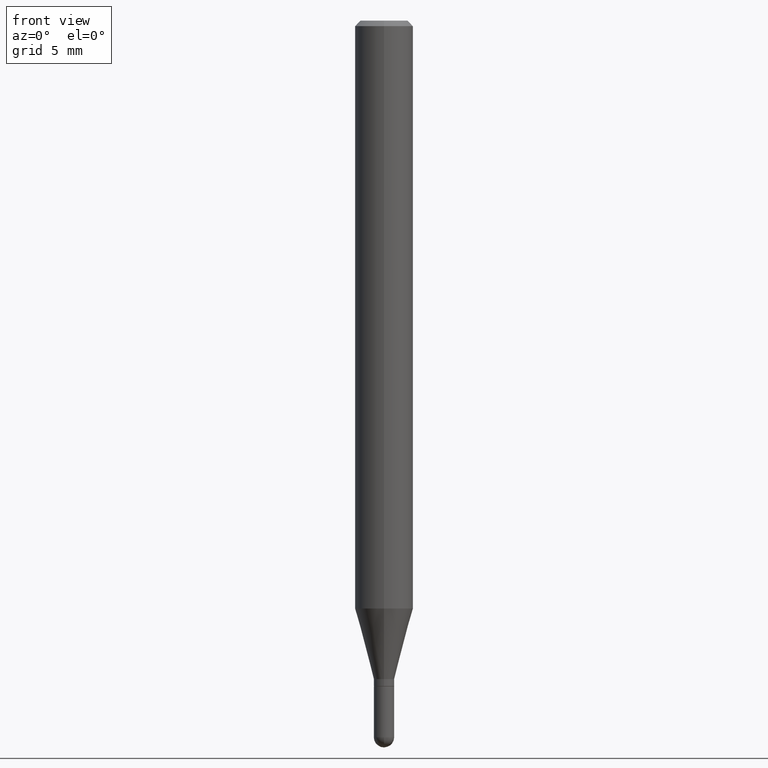
[diagram: clean part render]
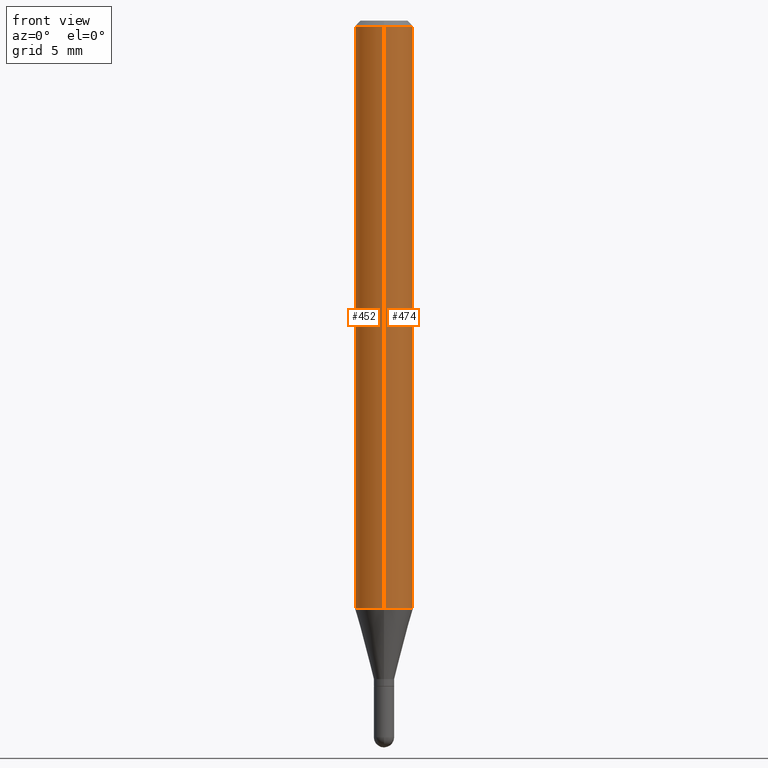
[diagram: same view with one multi-face feature highlighted, each face labeled with its STEP entity id]
A machine part, front view. The highlighted faces form ONE feature: a constant-radius fillet chain: 2 tangent blend faces with common blend radius 2.0002 mm. The faces share edges in the B-rep.
Their STEP definitions:
[1] entity #474 (Cylinder):
#4 = EDGE_CURVE ( 'NONE', #286, #284, #133, .T. ) ;
#21 = EDGE_CURVE ( 'NONE', #183, #42, #372, .T. ) ;
#22 = CARTESIAN_POINT ( 'NONE',  ( -5.499083108677546915E-16, -0.07875000000000557943, -1.592418998652472384 ) ) ;
#29 = CARTESIAN_POINT ( 'NONE',  ( 0.000000000000000000, 0.000000000000000000, 0.000000000000000000 ) ) ;
#39 = ORIENTED_EDGE ( 'NONE', *, *, #350, .F. ) ;
#42 = VERTEX_POINT ( 'NONE', #101 ) ;
#43 = DIRECTION ( 'NONE',  ( -6.982962677686264344E-15, -1.000000000000000000, 3.469013325287953293E-15 ) ) ;
#59 = DIRECTION ( 'NONE',  ( -2.445517019961652946E-29, 3.491412293971016589E-15, 1.000000000000000000 ) ) ;
#66 = DIRECTION ( 'NONE',  ( -2.445517019961652946E-29, 3.491412293971016589E-15, 1.000000000000000000 ) ) ;
#67 = FACE_OUTER_BOUND ( 'NONE', #124, .T. ) ;
#99 = CIRCLE ( 'NONE', #169, 0.07875000000000000056 ) ;
#101 = CARTESIAN_POINT ( 'NONE',  ( 5.595524044111180475E-16, 0.07874999999999994504, -0.01500000000000029261 ) ) ;
#103 = AXIS2_PLACEMENT_3D ( 'NONE', #214, #59, #282 ) ;
#116 = CARTESIAN_POINT ( 'NONE',  ( 5.595524044111174559E-16, 0.07874999999999440781, -1.592418998652472828 ) ) ;
#124 = EDGE_LOOP ( 'NONE', ( #305, #239, #39, #511 ) ) ;
#133 = LINE ( 'NONE', #292, #315 ) ;
#164 = CARTESIAN_POINT ( 'NONE',  ( 3.894287764114914031E-29, -5.559791269048257593E-15, -1.592418998652472606 ) ) ;
#169 = AXIS2_PLACEMENT_3D ( 'NONE', #164, #402, #43 ) ;
#183 = VERTEX_POINT ( 'NONE', #116 ) ;
#214 = CARTESIAN_POINT ( 'NONE',  ( 3.668275529942483535E-31, -5.237118440956531219E-17, -0.01500000000000001679 ) ) ;
#225 = CARTESIAN_POINT ( 'NONE',  ( 5.595524044110787031E-16, 0.07875000000000000056, -2.749487181502175115E-16 ) ) ;
#228 = DIRECTION ( 'NONE',  ( -2.445517019961652946E-29, 3.491412293971016589E-15, 1.000000000000000000 ) ) ;
#239 = ORIENTED_EDGE ( 'NONE', *, *, #21, .T. ) ;
#266 = DIRECTION ( 'NONE',  ( -6.982962677686264344E-15, -1.000000000000000000, 3.491412293971015800E-15 ) ) ;
#272 = EDGE_CURVE ( 'NONE', #286, #183, #99, .T. ) ;
#282 = DIRECTION ( 'NONE',  ( -6.982962677686264344E-15, -1.000000000000000000, 3.496114991891765576E-15 ) ) ;
#284 = VERTEX_POINT ( 'NONE', #390 ) ;
#286 = VERTEX_POINT ( 'NONE', #22 ) ;
#292 = CARTESIAN_POINT ( 'NONE',  ( -5.499083108677933457E-16, -0.07875000000000000056, 2.749487181502175115E-16 ) ) ;
#305 = ORIENTED_EDGE ( 'NONE', *, *, #272, .T. ) ;
#315 = VECTOR ( 'NONE', #66, 39.37007874015748143 ) ;
#347 = CYLINDRICAL_SURFACE ( 'NONE', #392, 0.07875000000000000056 ) ;
#350 = EDGE_CURVE ( 'NONE', #284, #42, #463, .T. ) ;
#372 = LINE ( 'NONE', #225, #383 ) ;
#383 = VECTOR ( 'NONE', #450, 39.37007874015748143 ) ;
#390 = CARTESIAN_POINT ( 'NONE',  ( -5.499083108677930499E-16, -0.07875000000000004219, -0.01499999999999974097 ) ) ;
#392 = AXIS2_PLACEMENT_3D ( 'NONE', #29, #228, #266 ) ;
#402 = DIRECTION ( 'NONE',  ( -2.445517019961652946E-29, 3.491412293971016589E-15, 1.000000000000000000 ) ) ;
#450 = DIRECTION ( 'NONE',  ( -2.445517019961652946E-29, 3.491412293971016589E-15, 1.000000000000000000 ) ) ;
#463 = CIRCLE ( 'NONE', #103, 0.07875000000000000056 ) ;
#474 = ADVANCED_FACE ( 'NONE', ( #67 ), #347, .T. ) ;
#511 = ORIENTED_EDGE ( 'NONE', *, *, #4, .F. ) ;
[2] entity #452 (Cylinder):
#4 = EDGE_CURVE ( 'NONE', #286, #284, #133, .T. ) ;
#21 = EDGE_CURVE ( 'NONE', #183, #42, #372, .T. ) ;
#22 = CARTESIAN_POINT ( 'NONE',  ( -5.499083108677546915E-16, -0.07875000000000557943, -1.592418998652472384 ) ) ;
#42 = VERTEX_POINT ( 'NONE', #101 ) ;
#58 = EDGE_CURVE ( 'NONE', #183, #286, #261, .T. ) ;
#66 = DIRECTION ( 'NONE',  ( -2.445517019961652946E-29, 3.491412293971016589E-15, 1.000000000000000000 ) ) ;
#80 = DIRECTION ( 'NONE',  ( -2.445517019961652946E-29, 3.491412293971016589E-15, 1.000000000000000000 ) ) ;
#97 = CARTESIAN_POINT ( 'NONE',  ( 0.000000000000000000, 0.000000000000000000, 0.000000000000000000 ) ) ;
#101 = CARTESIAN_POINT ( 'NONE',  ( 5.595524044111180475E-16, 0.07874999999999994504, -0.01500000000000029261 ) ) ;
#116 = CARTESIAN_POINT ( 'NONE',  ( 5.595524044111174559E-16, 0.07874999999999440781, -1.592418998652472828 ) ) ;
#133 = LINE ( 'NONE', #292, #315 ) ;
#146 = AXIS2_PLACEMENT_3D ( 'NONE', #394, #80, #427 ) ;
#148 = EDGE_CURVE ( 'NONE', #42, #284, #371, .T. ) ;
#182 = DIRECTION ( 'NONE',  ( -6.982962677686264344E-15, -1.000000000000000000, 3.491412293971015800E-15 ) ) ;
#183 = VERTEX_POINT ( 'NONE', #116 ) ;
#184 = CYLINDRICAL_SURFACE ( 'NONE', #500, 0.07875000000000000056 ) ;
#224 = DIRECTION ( 'NONE',  ( -2.445517019961652946E-29, 3.491412293971016589E-15, 1.000000000000000000 ) ) ;
#225 = CARTESIAN_POINT ( 'NONE',  ( 5.595524044110787031E-16, 0.07875000000000000056, -2.749487181502175115E-16 ) ) ;
#261 = CIRCLE ( 'NONE', #465, 0.07875000000000000056 ) ;
#284 = VERTEX_POINT ( 'NONE', #390 ) ;
#286 = VERTEX_POINT ( 'NONE', #22 ) ;
#289 = ORIENTED_EDGE ( 'NONE', *, *, #58, .T. ) ;
#292 = CARTESIAN_POINT ( 'NONE',  ( -5.499083108677933457E-16, -0.07875000000000000056, 2.749487181502175115E-16 ) ) ;
#315 = VECTOR ( 'NONE', #66, 39.37007874015748143 ) ;
#341 = ORIENTED_EDGE ( 'NONE', *, *, #4, .T. ) ;
#371 = CIRCLE ( 'NONE', #146, 0.07875000000000000056 ) ;
#372 = LINE ( 'NONE', #225, #383 ) ;
#379 = CARTESIAN_POINT ( 'NONE',  ( 3.894287764114914031E-29, -5.559791269048257593E-15, -1.592418998652472606 ) ) ;
#381 = ORIENTED_EDGE ( 'NONE', *, *, #21, .F. ) ;
#383 = VECTOR ( 'NONE', #450, 39.37007874015748143 ) ;
#390 = CARTESIAN_POINT ( 'NONE',  ( -5.499083108677930499E-16, -0.07875000000000004219, -0.01499999999999974097 ) ) ;
#394 = CARTESIAN_POINT ( 'NONE',  ( 3.668275529942483535E-31, -5.237118440956531219E-17, -0.01500000000000001679 ) ) ;
#420 = DIRECTION ( 'NONE',  ( -6.982962677686264344E-15, -1.000000000000000000, 3.469013325287953293E-15 ) ) ;
#427 = DIRECTION ( 'NONE',  ( -6.982962677686264344E-15, -1.000000000000000000, 3.496114991891765576E-15 ) ) ;
#450 = DIRECTION ( 'NONE',  ( -2.445517019961652946E-29, 3.491412293971016589E-15, 1.000000000000000000 ) ) ;
#452 = ADVANCED_FACE ( 'NONE', ( #456 ), #184, .T. ) ;
#456 = FACE_OUTER_BOUND ( 'NONE', #496, .T. ) ;
#458 = ORIENTED_EDGE ( 'NONE', *, *, #148, .F. ) ;
#465 = AXIS2_PLACEMENT_3D ( 'NONE', #379, #494, #420 ) ;
#494 = DIRECTION ( 'NONE',  ( -2.445517019961652946E-29, 3.491412293971016589E-15, 1.000000000000000000 ) ) ;
#496 = EDGE_LOOP ( 'NONE', ( #381, #289, #341, #458 ) ) ;
#500 = AXIS2_PLACEMENT_3D ( 'NONE', #97, #224, #182 ) ;